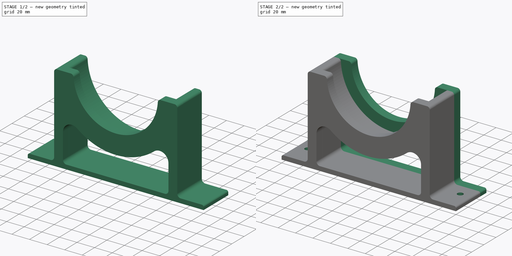
[diagram: build sequence overview — one tinted view per stage of 2, left to right]
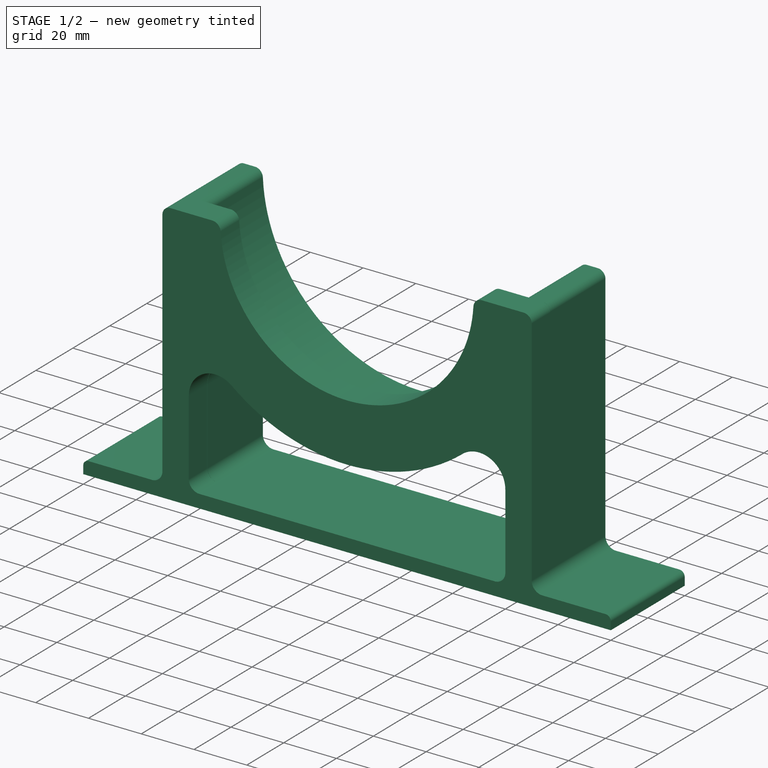
[diagram: stage 1 of 2 — iso view after this stage's code; geometry added in this stage tinted green]
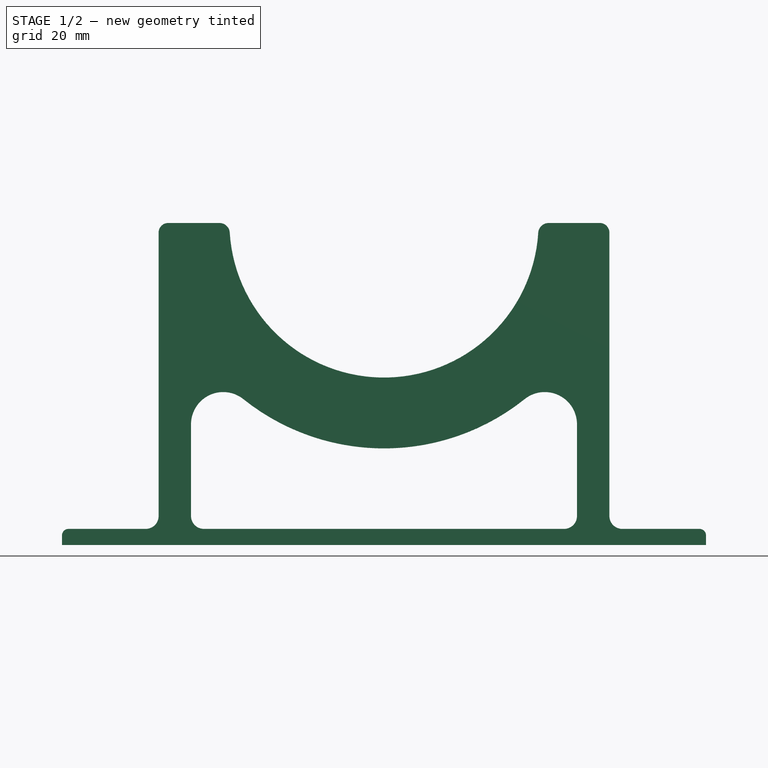
[diagram: stage 1 of 2 — front view after this stage's code; geometry added in this stage tinted green]
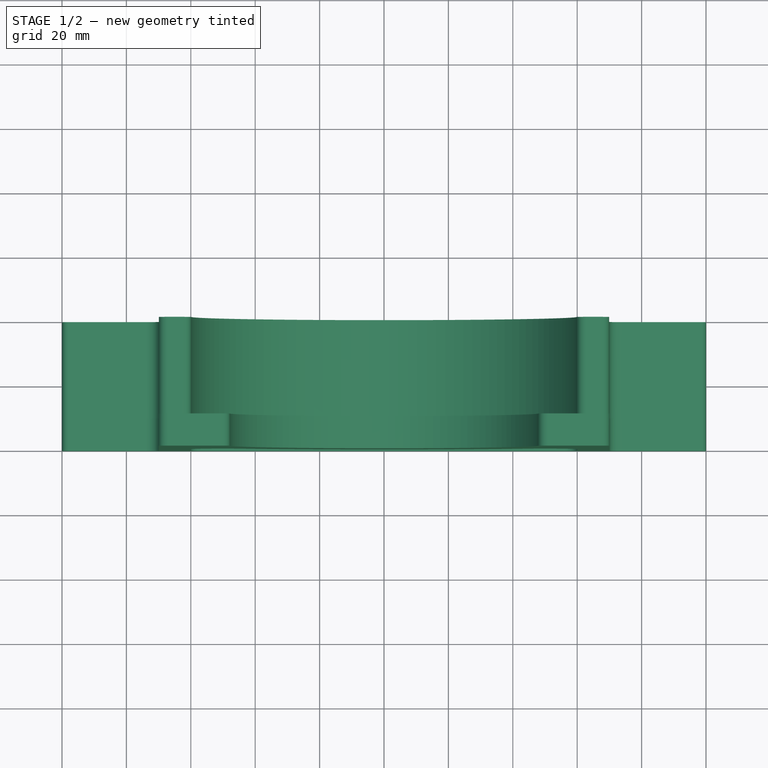
[diagram: stage 1 of 2 — top view after this stage's code; geometry added in this stage tinted green]
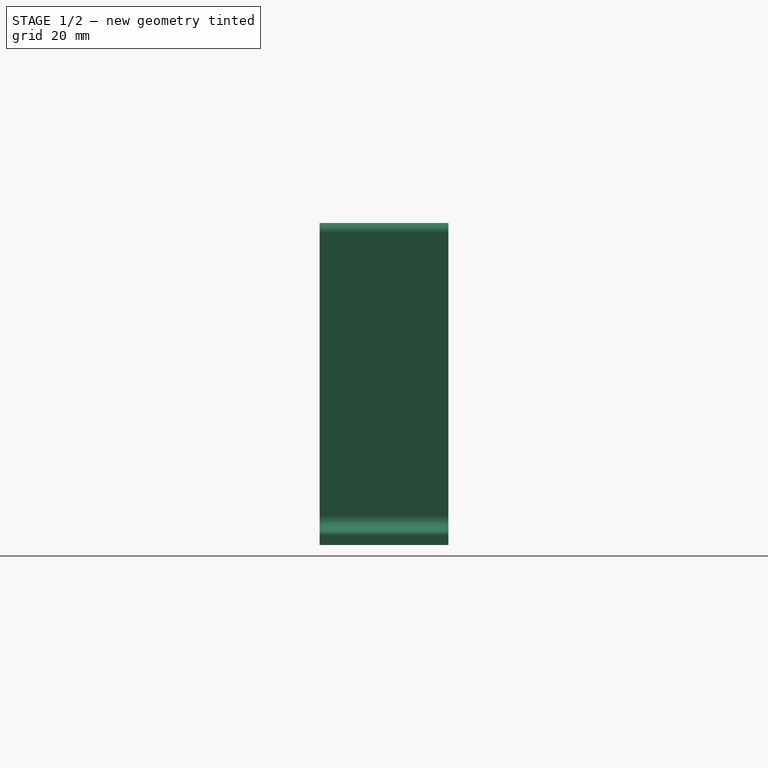
[diagram: stage 1 of 2 — right view after this stage's code; geometry added in this stage tinted green]
FCSTD DOCUMENT  (FreeCAD 0.19R)
Label: ring_light_mt
License: All rights reserved
LicenseURL: http://en.wikipedia.org/wiki/All_rights_reserved
objects: Sketcher::SketchObject×4, PartDesign::Pad×3, Spreadsheet::Sheet×1, PartDesign::Pocket×1, PartDesign::Body×1
note: 13 computed .brp shape members not serialized (recipe doc carries the construction recipe); baked Part::Feature solids carry a one-line shape summary decoded from their .brp

FEATURE [Sketcher::SketchObject] Sketch
  FullyConstrained = true
  MapMode = 5
  Placement = pos=(0,0,0) rot=(1,0,0;1.5708rad)
  Support = -> [XZ_Plane]
  expr: Constraints[11] = <<pp>>.light_diam + 24
  expr: Constraints[62] = 200
  expr: Constraints[63] = 200 / 2
  expr: Constraints[65] = <<pp>>.height
  sketch-geometry (26):
    g0: ArcOfCircle CenterX=0 CenterY=100 CenterZ=0 NormalX=0 NormalY=0 NormalZ=1 AngleXU=0 Radius=60 StartAngle=3.18923 EndAngle=6.23555
    g1: LineSegment StartX=-100 StartY=0 StartZ=0 EndX=100 EndY=0 EndZ=0
    g2: ArcOfCircle CenterX=0 CenterY=100 CenterZ=0 NormalX=0 NormalY=0 NormalZ=1 AngleXU=0 Radius=70 StartAngle=4.03835 EndAngle=5.38643
    g3: LineSegment StartX=69.9319 StartY=97.1429 StartZ=0 EndX=69.9319 EndY=9 EndZ=0
    g4: LineSegment StartX=100 StartY=0 StartZ=0 EndX=100 EndY=3 EndZ=0
    g5: LineSegment StartX=73.9319 StartY=5 StartZ=0 EndX=98 EndY=5 EndZ=0
    g6: LineSegment StartX=-69.9319 StartY=97.1429 StartZ=0 EndX=-69.9319 EndY=9 EndZ=0
    g7: LineSegment StartX=-73.9319 StartY=5 StartZ=0 EndX=-98 EndY=5 EndZ=0
    g8: LineSegment StartX=-100 StartY=3 StartZ=0 EndX=-100 EndY=0 EndZ=0
    g9: ArcOfCircle CenterX=-73.9319 CenterY=9 CenterZ=0 NormalX=0 NormalY=0 NormalZ=1 AngleXU=0 Radius=4 StartAngle=4.71239 EndAngle=6.28319
    g10: ArcOfCircle CenterX=73.9319 CenterY=9 CenterZ=0 NormalX=0 NormalY=0 NormalZ=1 AngleXU=0 Radius=4 StartAngle=3.14159 EndAngle=4.71239
    g11: ArcOfCircle CenterX=-98 CenterY=3 CenterZ=0 NormalX=0 NormalY=0 NormalZ=1 AngleXU=0 Radius=2 StartAngle=1.5708 EndAngle=3.14159
    g12: ArcOfCircle CenterX=98 CenterY=3 CenterZ=0 NormalX=0 NormalY=0 NormalZ=1 AngleXU=0 Radius=2 StartAngle=1e-16 EndAngle=1.5708
    g13: LineSegment StartX=-59.9319 StartY=37.4956 StartZ=0 EndX=-59.9319 EndY=9 EndZ=0
    g14: LineSegment StartX=-55.9319 StartY=5 StartZ=0 EndX=55.9319 EndY=5 EndZ=0
    g15: LineSegment StartX=59.9319 StartY=9 StartZ=0 EndX=59.9319 EndY=37.4956 EndZ=0
    g16: ArcOfCircle CenterX=-55.9319 CenterY=9 CenterZ=0 NormalX=0 NormalY=0 NormalZ=1 AngleXU=0 Radius=4 StartAngle=3.14159 EndAngle=4.71239
    g17: ArcOfCircle CenterX=55.9319 CenterY=9 CenterZ=0 NormalX=0 NormalY=0 NormalZ=1 AngleXU=0 Radius=4 StartAngle=4.71239 EndAngle=6.28319
    g18: LineSegment StartX=-67.0748 StartY=100 StartZ=0 EndX=-62.9285 EndY=100 EndZ=0
    g19: LineSegment StartX=62.9285 StartY=100 StartZ=0 EndX=67.0748 EndY=100 EndZ=0
    g20: ArcOfCircle CenterX=-67.0748 CenterY=97.1429 CenterZ=0 NormalX=0 NormalY=0 NormalZ=1 AngleXU=0 Radius=2.85714 StartAngle=1.5708 EndAngle=3.14159
    g21: ArcOfCircle CenterX=-62.9285 CenterY=97 CenterZ=0 NormalX=0 NormalY=0 NormalZ=1 AngleXU=0 Radius=3 StartAngle=0.0476371 EndAngle=1.5708
    g22: ArcOfCircle CenterX=62.9285 CenterY=97 CenterZ=0 NormalX=0 NormalY=0 NormalZ=1 AngleXU=0 Radius=3 StartAngle=1.5708 EndAngle=3.09396
    g23: ArcOfCircle CenterX=67.0748 CenterY=97.1429 CenterZ=0 NormalX=0 NormalY=0 NormalZ=1 AngleXU=0 Radius=2.85714 StartAngle=-9e-16 EndAngle=1.5708
    g24: ArcOfCircle CenterX=-49.9319 CenterY=37.4956 CenterZ=0 NormalX=0 NormalY=0 NormalZ=1 AngleXU=0 Radius=10 StartAngle=0.896754 EndAngle=3.14159
    g25: ArcOfCircle CenterX=49.9319 CenterY=37.4956 CenterZ=0 NormalX=0 NormalY=0 NormalZ=1 AngleXU=0 Radius=10 StartAngle=1e-16 EndAngle=2.24484
  constraints (67):
    c: PointOnObject(g0,g-2)
    c: PointOnObject(g1,g-1)
    c: Coincident(g2,g0)
    c: Vertical(g3)
    c: Vertical(g4)
    c: Horizontal(g5)
    c: Vertical(g6)
    c: Horizontal(g7)
    c: PointOnObject(g8,g-1)
    c: Coincident(g1,g8)
    c: Vertical(g8)
    c: Diameter(g2) = 140
    c: Tangent(g7,g9) = 1.5708
    c: Tangent(g6,g9) = 1.5708
    c: Tangent(g5,g10) = -1.5708
    c: Tangent(g3,g10) = -1.5708
    c: Tangent(g8,g11) = -1.5708
    c: Tangent(g7,g11) = -1.5708
    c: Tangent(g5,g12) = 1.5708
    c: Tangent(g4,g12) = -1.5708
    c: DistanceY(g1,g7) = 5
    c: DistanceY(g4,g5) = 5
    c: Coincident(g1,g4)
    c: Vertical(g13)
    c: Horizontal(g14)
    c: Vertical(g15)
    c: Tangent(g14,g16) = -1.5708
    c: Tangent(g13,g16) = -1.5708
    c: Tangent(g14,g17) = -1.5708
    c: Tangent(g15,g17) = -1.5708
    c: Horizontal(g14,g5)
    c: Horizontal(g13,g6)
    c: Horizontal(g15,g3)
    c: Equal(g16,g17)
    c: DistanceX(g15,g3) = 10
    c: DistanceX(g6,g13) = 10
    c: Tangent(g18,g20) = 1.5708
    c: Tangent(g6,g20) = -1.5708
    c: Tangent(g18,g21) = 1.5708
    c: Tangent(g0,g21) = 1.5708
    c: Tangent(g0,g22) = 1.5708
    c: Tangent(g19,g22) = 1.5708
    c: Tangent(g19,g23) = 1.5708
    c: Tangent(g3,g23) = 1.5708
    c: DistanceX(g0,g3) = 10
    c: DistanceX(g6,g0) = 10
    c: Horizontal(g0,g6)
    c: Horizontal(g18,g18)
    c: Horizontal(g0,g3)
    c: Horizontal(g19,g19)
    c: Horizontal(g0,g0)
    c: Horizontal(g19,g18)
    c: Diameter(g0) = 120
    c: Tangent(g13,g24) = -1.5708
    c: Tangent(g2,g24) = 1.5708
    c: Tangent(g2,g25) = 1.5708
    c: Tangent(g15,g25) = -1.5708
    c: Radius(g25) = 10
    c: Equal(g24,g25)
    c: Radius(g16) = 4
    c: Radius(g12) = 2
    c: Equal(g12,g11)
    c: DistanceX(g1,g1) = 200
    c: DistanceX(g1,g-1) = 100
    c: Radius(g21) = 3
    c: DistanceY(g1,g0) = 100
    c: Horizontal(g19,g0)
FEATURE [Spreadsheet::Sheet] Spreadsheet  label="pp"
  cells = A2=Height; B2(height)=100; A3=M6; B3(m6)=6.5; A5=Light diam; B5(light_diam)=116; A6=Light width; B6(light_width)=26
FEATURE [PartDesign::Pad] Pad  label="centre_support"
  Direction = (1,1,1)
  Length = 30
  Length2 = 100
  Placement = pos=(0,0,0) rot=(1,0,0;1.5708rad)
  Profile = -> Sketch
  Type = 0
  expr: Length = <<pp>>.light_width + 4
FEATURE [Sketcher::SketchObject] Sketch001
  FullyConstrained = true
  MapMode = 5
  Placement = pos=(0,-30,-1e-16) rot=(1,0,0;1.5708rad)
  Support = -> [Pad]
  expr: Constraints[56] = <<pp>>.light_diam + 24
  expr: Constraints[61] = <<pp>>.height
  expr: Constraints[63] = <<pp>>.light_diam - 20
  sketch-geometry (26):
    g0: ArcOfCircle CenterX=0 CenterY=100 CenterZ=0 NormalX=0 NormalY=0 NormalZ=1 AngleXU=0 Radius=48 StartAngle=3.20413 EndAngle=6.22064
    g1: LineSegment StartX=-67 StartY=100 StartZ=0 EndX=-51.0999 EndY=100 EndZ=0
    g2: LineSegment StartX=51.0999 StartY=100 StartZ=0 EndX=67 EndY=100 EndZ=0
    g3: LineSegment StartX=70 StartY=97 StartZ=0 EndX=70 EndY=9 EndZ=0
    g4: LineSegment StartX=74 StartY=5 StartZ=0 EndX=98 EndY=5 EndZ=0
    g5: LineSegment StartX=100 StartY=3 StartZ=0 EndX=100 EndY=0 EndZ=0
    g6: LineSegment StartX=100 StartY=0 StartZ=0 EndX=-100 EndY=0 EndZ=0
    g7: LineSegment StartX=-100 StartY=0 StartZ=0 EndX=-100 EndY=3 EndZ=0
    g8: LineSegment StartX=-98 StartY=5 StartZ=0 EndX=-74 EndY=5 EndZ=0
    g9: LineSegment StartX=-70 StartY=97 StartZ=0 EndX=-70 EndY=9 EndZ=0
    g10: ArcOfCircle CenterX=0 CenterY=100 CenterZ=0 NormalX=0 NormalY=0 NormalZ=1 AngleXU=0 Radius=70 StartAngle=4.03726 EndAngle=5.38752
    g11: LineSegment StartX=-60 StartY=37.55 StartZ=0 EndX=-60 EndY=9 EndZ=0
    g12: LineSegment StartX=-56 StartY=5 StartZ=0 EndX=56 EndY=5 EndZ=0
    g13: LineSegment StartX=60 StartY=9 StartZ=0 EndX=60 EndY=37.55 EndZ=0
    g14: ArcOfCircle CenterX=-50 CenterY=37.55 CenterZ=0 NormalX=0 NormalY=0 NormalZ=1 AngleXU=0 Radius=10 StartAngle=0.895665 EndAngle=3.14159
    g15: ArcOfCircle CenterX=50 CenterY=37.55 CenterZ=0 NormalX=0 NormalY=0 NormalZ=1 AngleXU=0 Radius=10 StartAngle=0 EndAngle=2.24593
    g16: ArcOfCircle CenterX=-67 CenterY=97 CenterZ=0 NormalX=0 NormalY=0 NormalZ=1 AngleXU=0 Radius=3 StartAngle=1.5708 EndAngle=3.14159
    g17: ArcOfCircle CenterX=-51.0999 CenterY=96.8 CenterZ=0 NormalX=0 NormalY=0 NormalZ=1 AngleXU=0 Radius=3.2 StartAngle=0.0625408 EndAngle=1.5708
    g18: ArcOfCircle CenterX=51.0999 CenterY=96.8 CenterZ=0 NormalX=0 NormalY=0 NormalZ=1 AngleXU=0 Radius=3.2 StartAngle=1.5708 EndAngle=3.07905
    g19: ArcOfCircle CenterX=67 CenterY=97 CenterZ=0 NormalX=0 NormalY=0 NormalZ=1 AngleXU=0 Radius=3 StartAngle=-1.8e-15 EndAngle=1.5708
    g20: ArcOfCircle CenterX=56 CenterY=9 CenterZ=0 NormalX=0 NormalY=0 NormalZ=1 AngleXU=0 Radius=4 StartAngle=4.71239 EndAngle=6.28319
    g21: ArcOfCircle CenterX=74 CenterY=9 CenterZ=0 NormalX=0 NormalY=0 NormalZ=1 AngleXU=0 Radius=4 StartAngle=3.14159 EndAngle=4.71239
    g22: ArcOfCircle CenterX=-56 CenterY=9 CenterZ=0 NormalX=0 NormalY=0 NormalZ=1 AngleXU=0 Radius=4 StartAngle=3.14159 EndAngle=4.71239
    g23: ArcOfCircle CenterX=-74 CenterY=9 CenterZ=0 NormalX=0 NormalY=0 NormalZ=1 AngleXU=0 Radius=4 StartAngle=4.71239 EndAngle=6.28319
    g24: ArcOfCircle CenterX=-98 CenterY=3 CenterZ=0 NormalX=0 NormalY=0 NormalZ=1 AngleXU=0 Radius=2 StartAngle=1.5708 EndAngle=3.14159
    g25: ArcOfCircle CenterX=98 CenterY=3 CenterZ=0 NormalX=0 NormalY=0 NormalZ=1 AngleXU=0 Radius=2 StartAngle=0 EndAngle=1.5708
  constraints (67):
    c: PointOnObject(g0,g-2)
    c: Horizontal(g1)
    c: Horizontal(g2)
    c: Vertical(g3)
    c: PointOnObject(g5,g-1)
    c: Coincident(g6,g5)
    c: PointOnObject(g6,g-1)
    c: Coincident(g7,g6)
    c: Vertical(g7)
    c: Horizontal(g8)
    c: Vertical(g9)
    c: Coincident(g10,g0)
    c: Vertical(g11)
    c: Horizontal(g12)
    c: Vertical(g13)
    c: Tangent(g11,g14) = -1.5708
    c: Tangent(g10,g14) = 1.5708
    c: Tangent(g10,g15) = 1.5708
    c: Tangent(g13,g15) = -1.5708
    c: Radius(g14) = 10
    c: Equal(g14,g15)
    c: Tangent(g9,g16) = -1.5708
    c: Tangent(g1,g16) = 1.5708
    c: Tangent(g1,g17) = 1.5708
    c: Tangent(g0,g17) = 1.5708
    c: Tangent(g2,g18) = 1.5708
    c: Tangent(g0,g18) = 1.5708
    c: Tangent(g2,g19) = 1.5708
    c: Tangent(g3,g19) = 1.5708
    c: Tangent(g12,g20) = -1.5708
    c: Tangent(g13,g20) = -1.5708
    c: Tangent(g3,g21) = -1.5708
    c: Tangent(g4,g21) = -1.5708
    c: Tangent(g12,g22) = -1.5708
    c: Tangent(g11,g22) = -1.5708
    c: Tangent(g8,g23) = -1.5708
    c: Tangent(g9,g23) = 1.5708
    c: Horizontal(g11,g9)
    c: Horizontal(g11,g13)
    c: Horizontal(g13,g3)
    c: Horizontal(g12,g8)
    c: Horizontal(g4,g12)
    c: DistanceX(g13,g3) = 10
    c: DistanceX(g9,g11) = 10
    c: Horizontal(g4)
    c: Tangent(g7,g24) = 1.5708
    c: Tangent(g8,g24) = 1.5708
    c: Tangent(g4,g25) = 1.5708
    c: Tangent(g5,g25) = 1.5708
    c: Vertical(g5)
    c: DistanceY(g-1,g4) = 5
    c: Equal(g24,g25)
    c: Radius(g25) = 2
    c: Radius(g21) = 4
    c: DistanceX(g6,g5) = 200
    c: DistanceX(g6,g-1) = 100
    c: Diameter(g10) = 140
    c: Horizontal(g9,g0)
    c: Horizontal(g0,g0)
    c: Horizontal(g0,g3)
    c: Radius(g19) = 3
    c: DistanceY(g-1,g2) = 100
    c: Horizontal(g1,g2)
    c: Diameter(g0) = 96
    c: DistanceX(g6,g9) = 30
    c: DistanceX(g3,g5) = 30
    c: Horizontal(g0,g2)
FEATURE [PartDesign::Pad] Pad001  label="side"
  BaseFeature = -> Pad
  Direction = (1,1,1)
  Length = 10
  Length2 = 100
  Placement = pos=(0,0,0) rot=(1,0,0;1.5708rad)
  Profile = -> Sketch001
  Type = 0
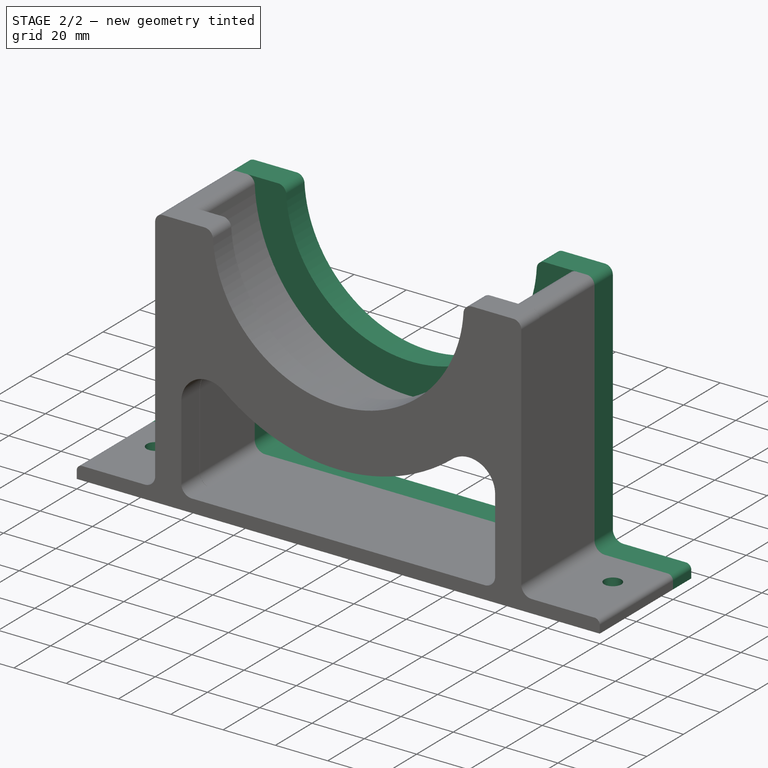
[diagram: stage 2 of 2 — iso view after this stage's code; geometry added in this stage tinted green]
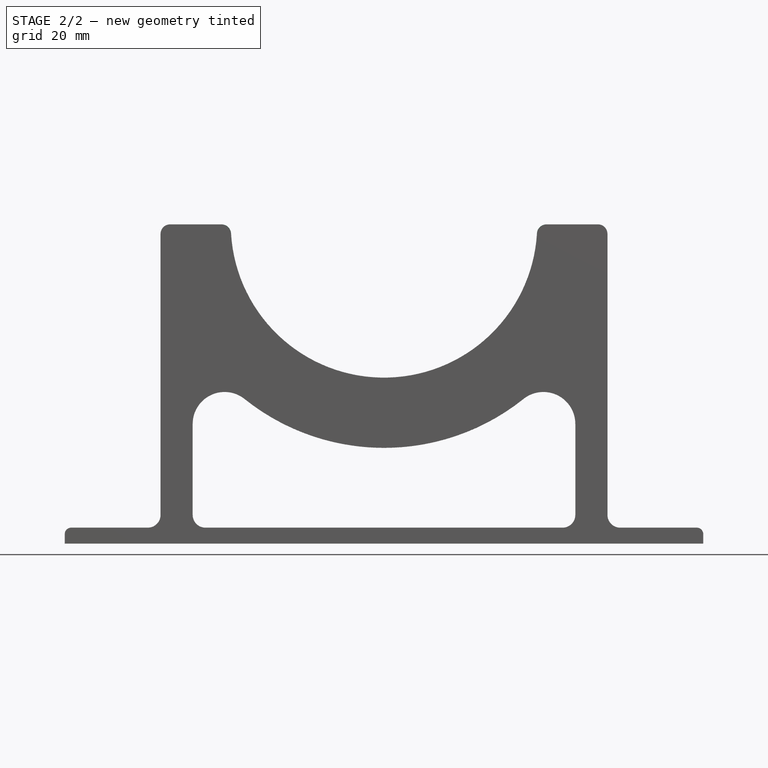
[diagram: stage 2 of 2 — front view after this stage's code; geometry added in this stage tinted green]
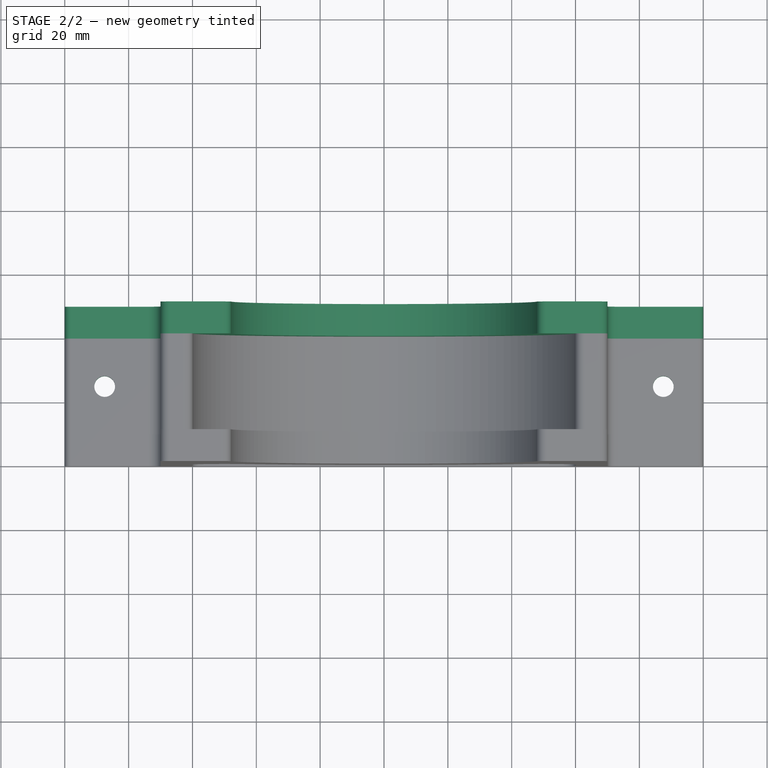
[diagram: stage 2 of 2 — top view after this stage's code; geometry added in this stage tinted green]
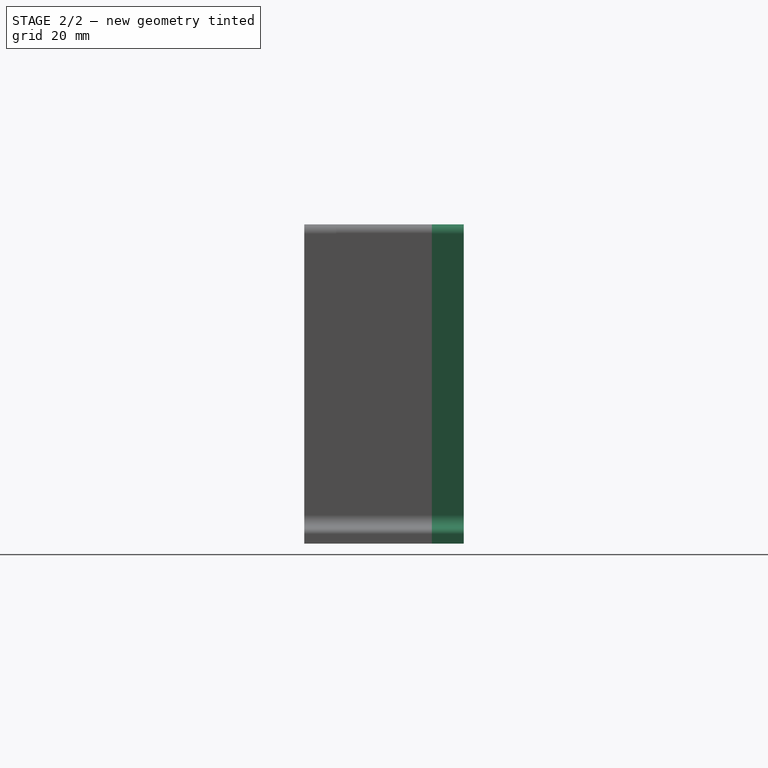
[diagram: stage 2 of 2 — right view after this stage's code; geometry added in this stage tinted green]
FEATURE [Sketcher::SketchObject] Sketch002
  FullyConstrained = true
  MapMode = 5
  Placement = pos=(0,1e-16,0) rot=(-1,0,0;1.5708rad)
  Support = -> [Pad001]
  expr: Constraints[61] = <<pp>>.light_diam - 20
  expr: Constraints[62] = <<pp>>.height
  expr: Constraints[64] = <<pp>>.light_diam + 24
  sketch-geometry (26):
    g0: ArcOfCircle CenterX=0 CenterY=-100 CenterZ=0 NormalX=0 NormalY=0 NormalZ=1 AngleXU=0 Radius=48 StartAngle=0.0588575 EndAngle=3.08274
    g1: ArcOfCircle CenterX=0 CenterY=-100 CenterZ=0 NormalX=0 NormalY=0 NormalZ=1 AngleXU=0 Radius=70 StartAngle=0.895665 EndAngle=2.24593
    g2: LineSegment StartX=50.9117 StartY=-100 StartZ=0 EndX=67 EndY=-100 EndZ=0
    g3: LineSegment StartX=70 StartY=-97 StartZ=0 EndX=70 EndY=-9 EndZ=0
    g4: LineSegment StartX=74 StartY=-5 StartZ=0 EndX=98 EndY=-5 EndZ=0
    g5: LineSegment StartX=100 StartY=-3 StartZ=0 EndX=100 EndY=0 EndZ=0
    g6: LineSegment StartX=100 StartY=0 StartZ=0 EndX=-100 EndY=0 EndZ=0
    g7: LineSegment StartX=-100 StartY=0 StartZ=0 EndX=-100 EndY=-3 EndZ=0
    g8: LineSegment StartX=-98 StartY=-5 StartZ=0 EndX=-74 EndY=-5 EndZ=0
    g9: LineSegment StartX=-70 StartY=-9 StartZ=0 EndX=-70 EndY=-97 EndZ=0
    g10: LineSegment StartX=-50.9117 StartY=-100 StartZ=0 EndX=-67 EndY=-100 EndZ=0
    g11: LineSegment StartX=-60 StartY=-37.55 StartZ=0 EndX=-60 EndY=-9 EndZ=0
    g12: LineSegment StartX=-56 StartY=-5 StartZ=0 EndX=56 EndY=-5 EndZ=0
    g13: LineSegment StartX=60 StartY=-9 StartZ=0 EndX=60 EndY=-37.55 EndZ=0
    g14: ArcOfCircle CenterX=50 CenterY=-37.55 CenterZ=0 NormalX=0 NormalY=0 NormalZ=1 AngleXU=0 Radius=10 StartAngle=4.03726 EndAngle=6.28319
    g15: ArcOfCircle CenterX=-50 CenterY=-37.55 CenterZ=0 NormalX=0 NormalY=0 NormalZ=1 AngleXU=0 Radius=10 StartAngle=3.14159 EndAngle=5.38752
    g16: ArcOfCircle CenterX=-56 CenterY=-9 CenterZ=0 NormalX=0 NormalY=0 NormalZ=1 AngleXU=0 Radius=4 StartAngle=1.5708 EndAngle=3.14159
    g17: ArcOfCircle CenterX=-74 CenterY=-9 CenterZ=0 NormalX=0 NormalY=0 NormalZ=1 AngleXU=0 Radius=4 StartAngle=0 EndAngle=1.5708
    g18: ArcOfCircle CenterX=-98 CenterY=-3 CenterZ=0 NormalX=0 NormalY=0 NormalZ=1 AngleXU=0 Radius=2 StartAngle=3.14159 EndAngle=4.71239
    g19: ArcOfCircle CenterX=56 CenterY=-9 CenterZ=0 NormalX=0 NormalY=0 NormalZ=1 AngleXU=0 Radius=4 StartAngle=0 EndAngle=1.5708
    g20: ArcOfCircle CenterX=74 CenterY=-9 CenterZ=0 NormalX=0 NormalY=0 NormalZ=1 AngleXU=0 Radius=4 StartAngle=1.5708 EndAngle=3.14159
    g21: ArcOfCircle CenterX=98 CenterY=-3 CenterZ=0 NormalX=0 NormalY=0 NormalZ=1 AngleXU=0 Radius=2 StartAngle=4.71239 EndAngle=6.28319
    g22: ArcOfCircle CenterX=67 CenterY=-97 CenterZ=0 NormalX=0 NormalY=0 NormalZ=1 AngleXU=0 Radius=3 StartAngle=4.71239 EndAngle=6.28319
    g23: ArcOfCircle CenterX=50.9117 CenterY=-97 CenterZ=0 NormalX=0 NormalY=0 NormalZ=1 AngleXU=0 Radius=3 StartAngle=3.20045 EndAngle=4.71239
    g24: ArcOfCircle CenterX=-50.9117 CenterY=-97 CenterZ=0 NormalX=0 NormalY=0 NormalZ=1 AngleXU=0 Radius=3 StartAngle=4.71239 EndAngle=6.22433
    g25: ArcOfCircle CenterX=-67 CenterY=-97 CenterZ=0 NormalX=0 NormalY=0 NormalZ=1 AngleXU=0 Radius=3 StartAngle=3.14159 EndAngle=4.71239
  constraints (67):
    c: PointOnObject(g0,g-2)
    c: Coincident(g1,g0)
    c: Horizontal(g2)
    c: Vertical(g3)
    c: Horizontal(g4)
    c: PointOnObject(g5,g-1)
    c: Vertical(g5)
    c: Coincident(g6,g5)
    c: PointOnObject(g6,g-1)
    c: Coincident(g7,g6)
    c: Vertical(g9)
    c: Horizontal(g12)
    c: Tangent(g13,g14) = 1.5708
    c: Tangent(g1,g14) = 1.5708
    c: Tangent(g1,g15) = 1.5708
    c: Tangent(g11,g15) = 1.5708
    c: Vertical(g11)
    c: Vertical(g13)
    c: Tangent(g12,g16) = 1.5708
    c: Tangent(g11,g16) = 1.5708
    c: Tangent(g8,g17) = 1.5708
    c: Tangent(g9,g17) = 1.5708
    c: Tangent(g8,g18) = -1.5708
    c: Tangent(g7,g18) = -1.5708
    c: Horizontal(g8)
    c: Vertical(g7)
    c: Tangent(g12,g19) = 1.5708
    c: Tangent(g13,g19) = 1.5708
    c: Tangent(g4,g20) = 1.5708
    c: Tangent(g3,g20) = 1.5708
    c: Tangent(g5,g21) = -1.5708
    c: Tangent(g4,g21) = -1.5708
    c: Horizontal(g3,g13)
    c: Horizontal(g13,g11)
    c: Horizontal(g11,g9)
    c: Horizontal(g8,g12)
    c: Horizontal(g12,g4)
    c: DistanceX(g13,g3) = 10
    c: DistanceX(g9,g11) = 10
    c: DistanceY(g8,g6) = 5
    c: Equal(g21,g18)
    c: Radius(g18) = 2
    c: Radius(g17) = 4
    c: DistanceX(g6,g5) = 200
    c: DistanceX(g-1,g5) = 100
    c: DistanceX(g6,g9) = 30
    c: Equal(g14,g15)
    c: Radius(g15) = 10
    c: Horizontal(g10)
    c: Tangent(g3,g22) = -1.5708
    c: Tangent(g2,g22) = -1.5708
    c: Tangent(g2,g23) = -1.5708
    c: Tangent(g0,g23) = 1.5708
    c: Tangent(g0,g24) = 1.5708
    c: Tangent(g10,g24) = 1.5708
    c: Tangent(g10,g25) = 1.5708
    c: Tangent(g9,g25) = -1.5708
    c: Equal(g23,g22)
    c: Equal(g23,g24)
    c: Equal(g23,g25)
    c: Radius(g25) = 3
    c: Diameter(g0) = 96
    c: DistanceY(g10,g-1) = 100
    c: Horizontal(g2,g10)
    c: Diameter(g1) = 140
    c: DistanceX(g3,g5) = 30
    c: Horizontal(g10,g0)
FEATURE [PartDesign::Pad] Pad002  label="side2"
  BaseFeature = -> Pad001
  Direction = (1,1,1)
  Length = 10
  Length2 = 100
  Placement = pos=(0,0,0) rot=(1,0,0;1.5708rad)
  Profile = -> Sketch002
  Type = 0
FEATURE [Sketcher::SketchObject] Sketch003
  FullyConstrained = true
  MapMode = 5
  Placement = pos=(0,-1.1e-15,5) rot=(0,0,1;3.14159rad)
  Support = -> [Pad002]
  expr: Constraints[0] = <<pp>>.m6
  expr: Constraints[1] = <<pp>>.m6
  expr: Constraints[2] = 175
  expr: Constraints[3] = 175 / 2
  sketch-geometry (2):
    g0: Circle CenterX=-87.5 CenterY=15 CenterZ=0 NormalX=0 NormalY=0 NormalZ=1 AngleXU=0 Radius=3.25
    g1: Circle CenterX=87.5 CenterY=15 CenterZ=0 NormalX=0 NormalY=0 NormalZ=1 AngleXU=0 Radius=3.25
  constraints (6):
    c: Diameter(g1) = 6.5
    c: Diameter(g0) = 6.5
    c: DistanceX(g0,g1) = 175
    c: DistanceX(g0,g-1) = 87.5
    c: DistanceY(g-1,g0) = 15
    c: Horizontal(g0,g1)
FEATURE [PartDesign::Pocket] Pocket  label="bottom_m6_holes"
  BaseFeature = -> Pad002
  Length = 5
  Length2 = 100
  Placement = pos=(0,0,0) rot=(1,0,0;1.5708rad)
  Profile = -> Sketch003
  Type = 0
FEATURE [PartDesign::Body] Body
  Group = -> [Sketch,Pad,Sketch001,Pad001,Sketch002,Pad002,Sketch003,Pocket]
  Origin = -> Origin
  Tip = -> Pocket
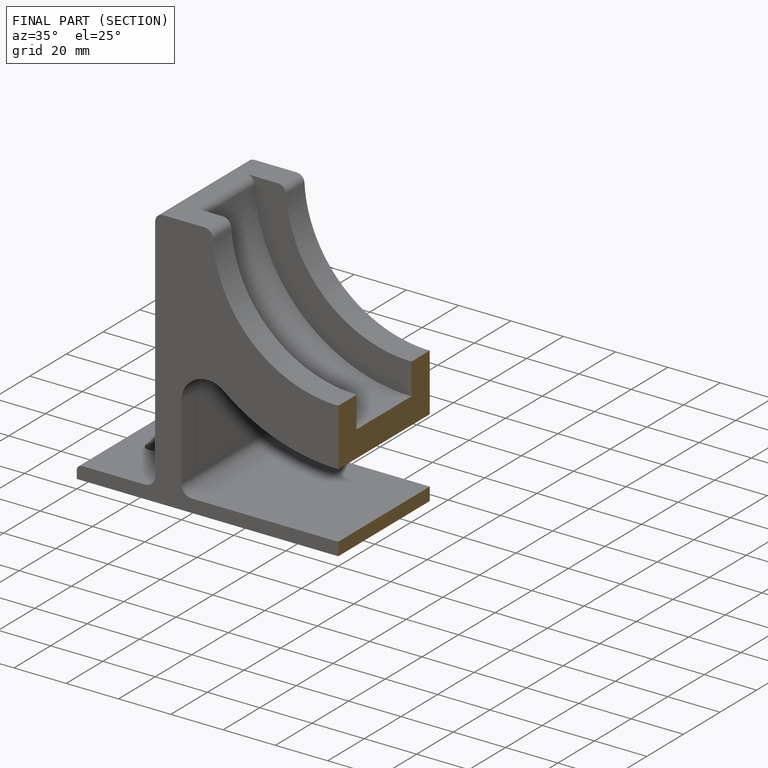
[diagram: finished part — half-section view (interior)]
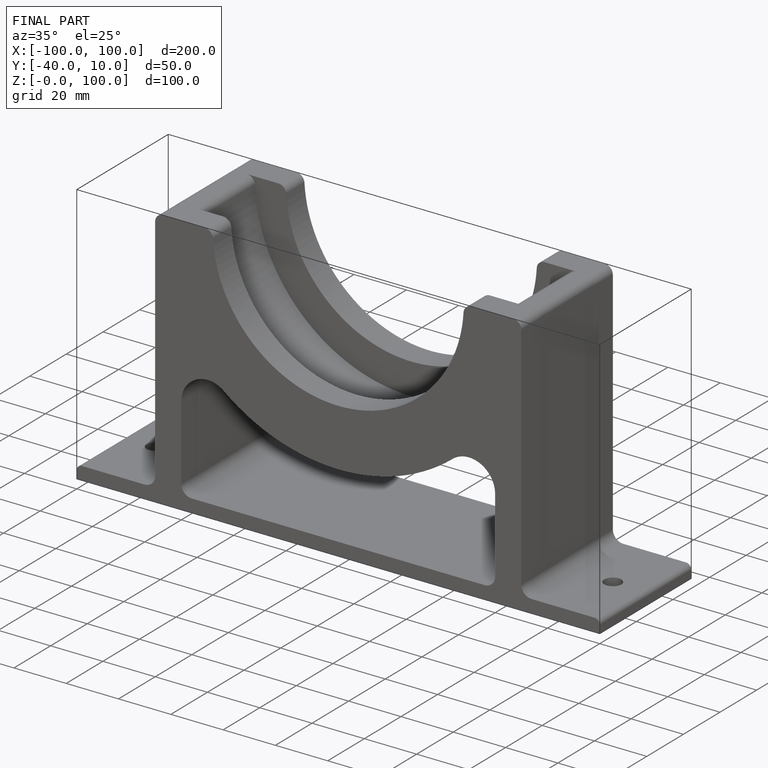
[diagram: finished part — iso view with bounding-box wireframe]
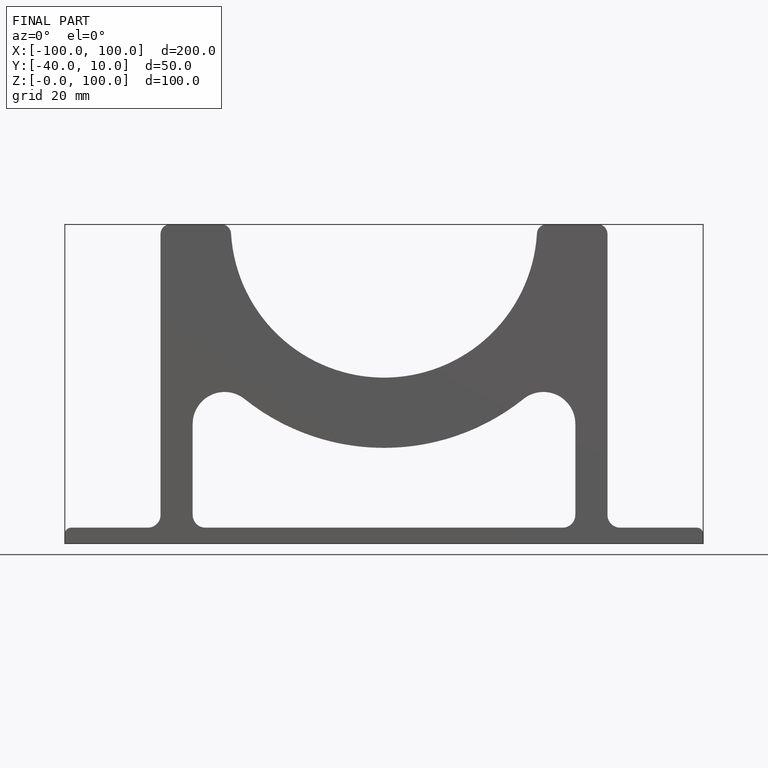
[diagram: finished part — front view with bounding-box wireframe]
